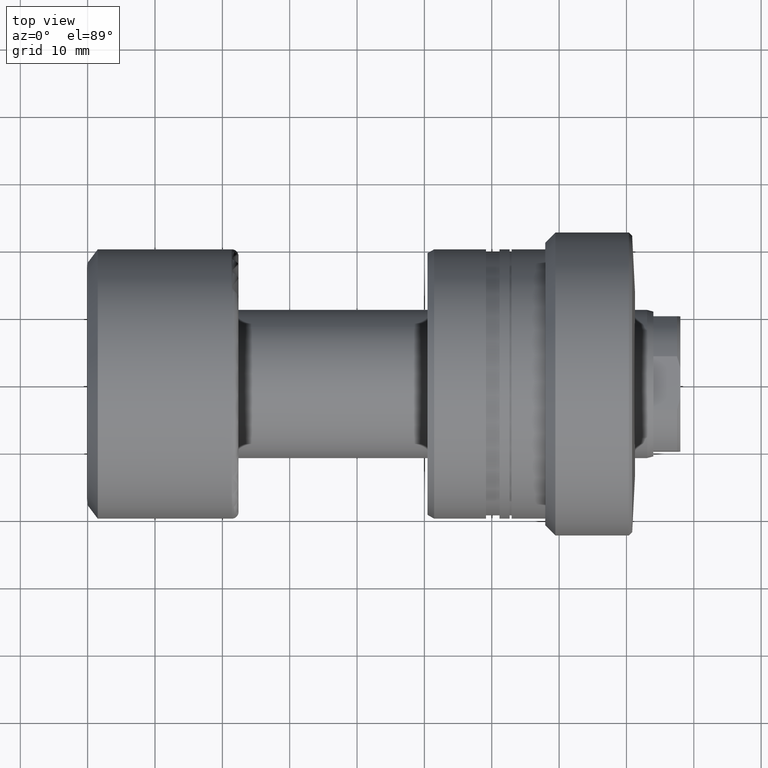
[diagram: clean part render]
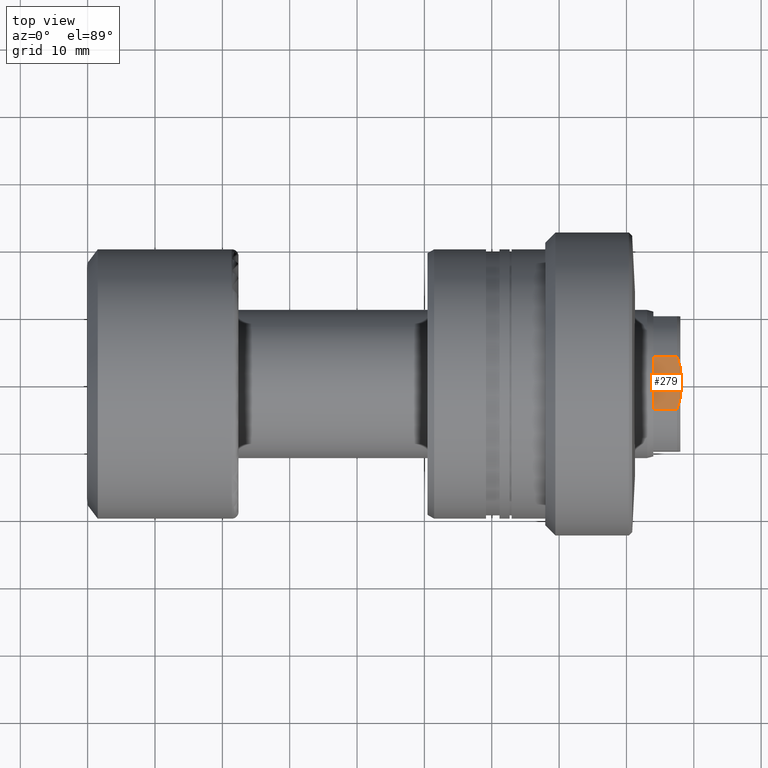
[diagram: same view with one face highlighted and labeled with its STEP entity id]
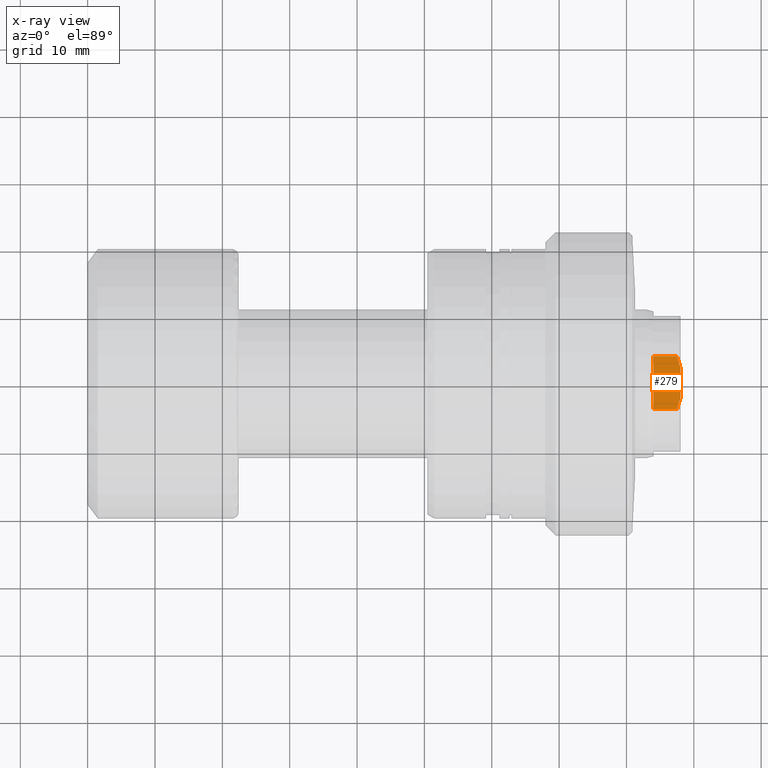
[diagram: x-ray of the same camera — body ghosted, the highlighted face saturated]
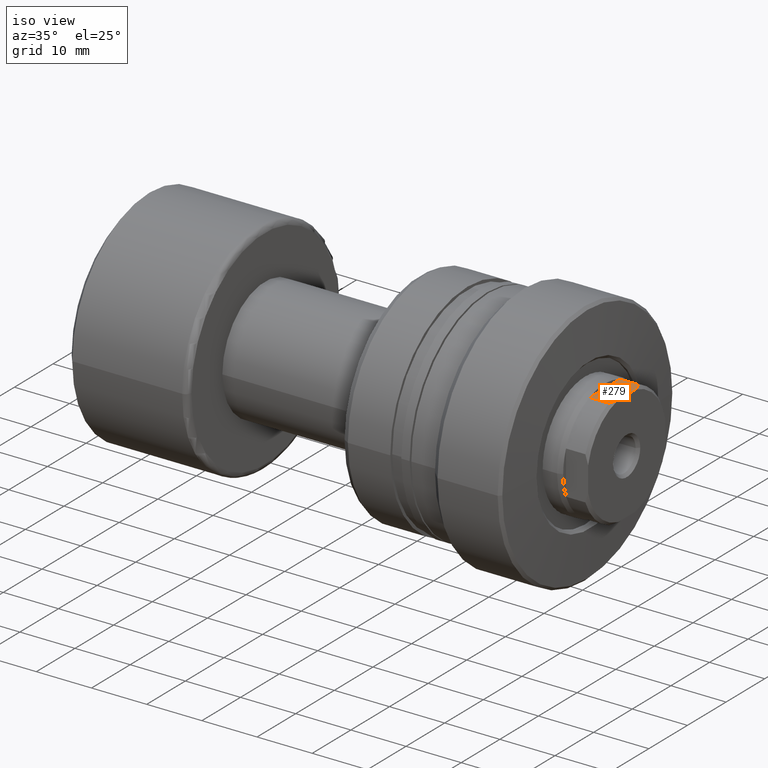
[diagram: same view with one face highlighted and labeled with its STEP entity id]
A machine part, top view. The second image highlights one B-rep face of the part: STEP entity #279.
The next image is the same camera in x-ray: the body ghosted, the highlighted face saturated — about 0% of this face is hidden behind the body in this view.
A second angle (iso view) of the same face is appended — the face is thin or edge-on in the first view.
In plain terms, the highlighted planar face has unit normal (0, 0, -1).
Its self-contained STEP definition (entity closure, byte-faithful):
#34 = CARTESIAN_POINT ( 'NONE',  ( 88.00000000000004263, 2.249999999999976019, 10.00000000000000000 ) ) ;
#53 = ORIENTED_EDGE ( 'NONE', *, *, #769, .F. ) ;
#86 = EDGE_CURVE ( 'NONE', #1188, #982, #1861, .T. ) ;
#93 = ORIENTED_EDGE ( 'NONE', *, *, #1957, .T. ) ;
#119 = FACE_OUTER_BOUND ( 'NONE', #1466, .T. ) ;
#279 = ADVANCED_FACE ( 'NONE', ( #119 ), #1803, .F. ) ;
#288 = CARTESIAN_POINT ( 'NONE',  ( 83.99999999999992895, -3.944933459516270613, 9.999999999999998224 ) ) ;
#426 = VECTOR ( 'NONE', #1830, 1000.000000000000000 ) ;
#451 = VERTEX_POINT ( 'NONE', #1878 ) ;
#555 = LINE ( 'NONE', #2047, #426 ) ;
#676 = VERTEX_POINT ( 'NONE', #1363 ) ;
#691 = DIRECTION ( 'NONE',  ( 1.000000000000000000, -1.657264799492230625E-14, -0.000000000000000000 ) ) ;
#696 = DIRECTION ( 'NONE',  ( 1.758938135488339612E-14, 1.000000000000000000, 2.198672669360424367E-16 ) ) ;
#740 = CARTESIAN_POINT ( 'NONE',  ( 87.50000000000000000, 3.944933459516144936, 9.999999999999502620 ) ) ;
#769 = EDGE_CURVE ( 'NONE', #451, #982, #1248, .T. ) ;
#982 = VERTEX_POINT ( 'NONE', #1862 ) ;
#1050 = DIRECTION ( 'NONE',  ( 1.000000000000000000, -1.657264799492230625E-14, -0.000000000000000000 ) ) ;
#1076 = ORIENTED_EDGE ( 'NONE', *, *, #1709, .T. ) ;
#1107 = CARTESIAN_POINT ( 'NONE',  ( 87.70335817859871952, 3.390779519436888823, 10.00000000000000000 ) ) ;
#1118 = LINE ( 'NONE', #2442, #1199 ) ;
#1188 = VERTEX_POINT ( 'NONE', #34 ) ;
#1199 = VECTOR ( 'NONE', #691, 1000.000000000000000 ) ;
#1238 = DIRECTION ( 'NONE',  ( 0.000000000000000000, 1.000000000000000000, 2.198672669360424367E-16 ) ) ;
#1248 = LINE ( 'NONE', #1773, #2394 ) ;
#1266 = ORIENTED_EDGE ( 'NONE', *, *, #1637, .T. ) ;
#1363 = CARTESIAN_POINT ( 'NONE',  ( 83.99999999999992895, -3.944933459516467789, 10.00000000000049560 ) ) ;
#1373 = CARTESIAN_POINT ( 'NONE',  ( 87.87338680022153881, -2.826793465657385429, 9.999999999999998224 ) ) ;
#1402 = VECTOR ( 'NONE', #696, 1000.000000000000000 ) ;
#1465 = DIRECTION ( 'NONE',  ( 3.643782820536651821E-30, 2.198672669360424367E-16, -1.000000000000000000 ) ) ;
#1466 = EDGE_LOOP ( 'NONE', ( #93, #1076, #1266, #1486, #53, #2128 ) ) ;
#1472 = B_SPLINE_CURVE_WITH_KNOTS ( 'NONE', 3,
 ( #1553, #2301, #1373, #1601 ),
 .UNSPECIFIED., .F., .F.,
 ( 4, 4 ),
 ( 3.766877234117328240E-16, 0.001767144428785432948 ),
 .UNSPECIFIED. ) ;
#1486 = ORIENTED_EDGE ( 'NONE', *, *, #86, .T. ) ;
#1524 = CARTESIAN_POINT ( 'NONE',  ( 88.00000000000004263, 2.249999999999976019, 10.00000000000000000 ) ) ;
#1553 = CARTESIAN_POINT ( 'NONE',  ( 87.50000000000000000, -3.944933459516525964, 10.00000000000049560 ) ) ;
#1601 = CARTESIAN_POINT ( 'NONE',  ( 87.99999999999995737, -2.249999999999969802, 10.00000000000000000 ) ) ;
#1604 = AXIS2_PLACEMENT_3D ( 'NONE', #1995, #1465, #1238 ) ;
#1637 = EDGE_CURVE ( 'NONE', #1719, #1188, #555, .T. ) ;
#1668 = CARTESIAN_POINT ( 'NONE',  ( 87.50000000000000000, -3.944933459516525964, 10.00000000000049560 ) ) ;
#1709 = EDGE_CURVE ( 'NONE', #2307, #1719, #1472, .T. ) ;
#1719 = VERTEX_POINT ( 'NONE', #1978 ) ;
#1720 = CARTESIAN_POINT ( 'NONE',  ( 87.87338680022151038, 2.826793465657515547, 9.999999999999998224 ) ) ;
#1773 = CARTESIAN_POINT ( 'NONE',  ( 84.00000000000005684, 3.944933459516203111, 9.999999999999502620 ) ) ;
#1803 = PLANE ( 'NONE',  #1604 ) ;
#1830 = DIRECTION ( 'NONE',  ( 1.758938135488339612E-14, 1.000000000000000000, 2.198672669360424367E-16 ) ) ;
#1833 = LINE ( 'NONE', #288, #1402 ) ;
#1861 = B_SPLINE_CURVE_WITH_KNOTS ( 'NONE', 3,
 ( #1524, #1720, #1107, #740 ),
 .UNSPECIFIED., .F., .F.,
 ( 4, 4 ),
 ( 1.127570259384924611E-17, 0.001767144428785447476 ),
 .UNSPECIFIED. ) ;
#1862 = CARTESIAN_POINT ( 'NONE',  ( 87.50000000000000000, 3.944933459516144936, 9.999999999999502620 ) ) ;
#1878 = CARTESIAN_POINT ( 'NONE',  ( 84.00000000000005684, 3.944933459516203111, 9.999999999999502620 ) ) ;
#1957 = EDGE_CURVE ( 'NONE', #676, #2307, #1118, .T. ) ;
#1978 = CARTESIAN_POINT ( 'NONE',  ( 87.99999999999995737, -2.249999999999969802, 10.00000000000000000 ) ) ;
#1995 = CARTESIAN_POINT ( 'NONE',  ( 83.99999999999992895, -3.944933459516270613, 9.999999999999998224 ) ) ;
#2047 = CARTESIAN_POINT ( 'NONE',  ( 87.99999999999992895, -3.944933459516336782, 9.999999999999998224 ) ) ;
#2128 = ORIENTED_EDGE ( 'NONE', *, *, #2375, .F. ) ;
#2301 = CARTESIAN_POINT ( 'NONE',  ( 87.70335817859911742, -3.390779519437088219, 9.999999999999504396 ) ) ;
#2307 = VERTEX_POINT ( 'NONE', #1668 ) ;
#2375 = EDGE_CURVE ( 'NONE', #676, #451, #1833, .T. ) ;
#2394 = VECTOR ( 'NONE', #1050, 1000.000000000000000 ) ;
#2442 = CARTESIAN_POINT ( 'NONE',  ( 83.99999999999992895, -3.944933459516467789, 10.00000000000049560 ) ) ;